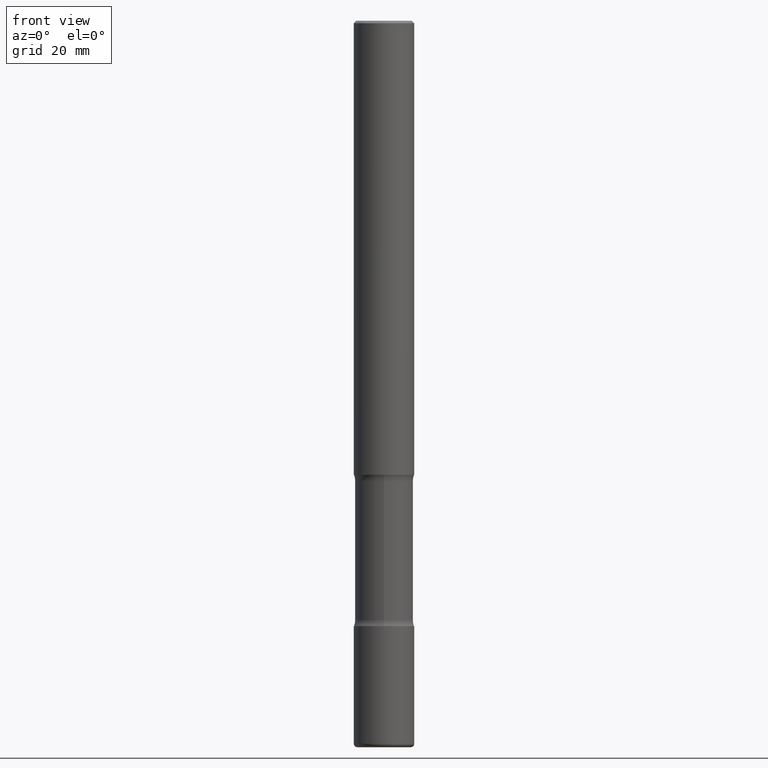
[diagram: clean part render]
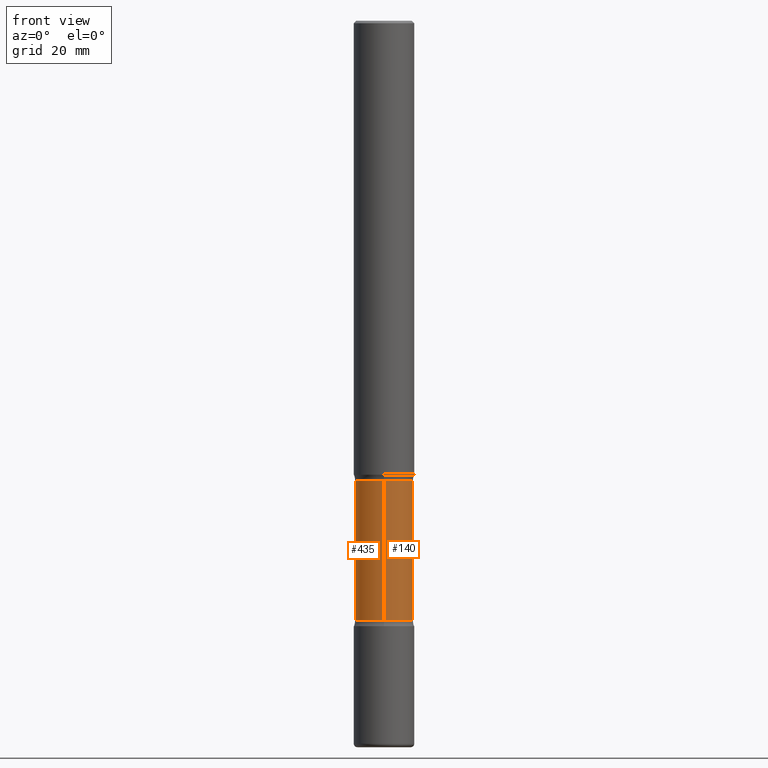
[diagram: same view with one multi-face feature highlighted, each face labeled with its STEP entity id]
A machine part, front view. The highlighted faces form ONE feature: a constant-radius fillet chain: 2 tangent blend faces with common blend radius 6.096 mm. The faces share edges in the B-rep.
Their STEP definitions:
[1] entity #140 (Cylinder):
#6 = VERTEX_POINT ( 'NONE', #201 ) ;
#8 = AXIS2_PLACEMENT_3D ( 'NONE', #170, #344, #518 ) ;
#9 = EDGE_LOOP ( 'NONE', ( #102, #279, #296, #72 ) ) ;
#14 = CYLINDRICAL_SURFACE ( 'NONE', #459, 0.2400000000000001021 ) ;
#16 = DIRECTION ( 'NONE',  ( 2.613521377680253946E-29, -3.250820491503775713E-15, -1.000000000000000000 ) ) ;
#18 = CARTESIAN_POINT ( 'NONE',  ( 1.484086540860593637E-28, -2.070822718571950481E-14, -6.000000000000000888 ) ) ;
#72 = ORIENTED_EDGE ( 'NONE', *, *, #329, .F. ) ;
#87 = CIRCLE ( 'NONE', #8, 0.2399999999999999634 ) ;
#102 = ORIENTED_EDGE ( 'NONE', *, *, #258, .T. ) ;
#118 = VECTOR ( 'NONE', #16, 39.37007874015748143 ) ;
#140 = ADVANCED_FACE ( 'NONE', ( #228 ), #14, .T. ) ;
#147 = VERTEX_POINT ( 'NONE', #397 ) ;
#150 = DIRECTION ( 'NONE',  ( 6.982962677686265922E-15, 1.000000000000000000, -4.553079989440436725E-15 ) ) ;
#170 = CARTESIAN_POINT ( 'NONE',  ( 1.209930815478223541E-28, -1.729814966522437149E-14, -4.951010205144336318 ) ) ;
#174 = CIRCLE ( 'NONE', #206, 0.2400000000000002409 ) ;
#201 = CARTESIAN_POINT ( 'NONE',  ( 1.675911042644796465E-15, 0.2399999999999866962, -3.798989794855664570 ) ) ;
#206 = AXIS2_PLACEMENT_3D ( 'NONE', #241, #293, #250 ) ;
#224 = VERTEX_POINT ( 'NONE', #402 ) ;
#228 = FACE_OUTER_BOUND ( 'NONE', #9, .T. ) ;
#241 = CARTESIAN_POINT ( 'NONE',  ( 9.088478184968812142E-29, -1.355313810882736568E-14, -3.798989794855663682 ) ) ;
#250 = DIRECTION ( 'NONE',  ( 6.982962677686265922E-15, 1.000000000000000000, -2.276539994720217179E-15 ) ) ;
#258 = EDGE_CURVE ( 'NONE', #6, #147, #174, .T. ) ;
#279 = ORIENTED_EDGE ( 'NONE', *, *, #532, .T. ) ;
#293 = DIRECTION ( 'NONE',  ( 2.613521377680253946E-29, -3.250820491503775319E-15, -1.000000000000000000 ) ) ;
#296 = ORIENTED_EDGE ( 'NONE', *, *, #415, .F. ) ;
#329 = EDGE_CURVE ( 'NONE', #6, #440, #383, .T. ) ;
#331 = CARTESIAN_POINT ( 'NONE',  ( -1.646519519465019451E-15, -0.2400000000000208078, -5.999999999999999112 ) ) ;
#344 = DIRECTION ( 'NONE',  ( 2.613521377680253946E-29, -3.250820491503775319E-15, -1.000000000000000000 ) ) ;
#347 = CARTESIAN_POINT ( 'NONE',  ( 1.675911042644853066E-15, 0.2399999999999793965, -6.000000000000001776 ) ) ;
#383 = LINE ( 'NONE', #347, #428 ) ;
#397 = CARTESIAN_POINT ( 'NONE',  ( -1.680822009453936675E-15, -0.2400000000000137856, -3.798989794855663238 ) ) ;
#402 = CARTESIAN_POINT ( 'NONE',  ( -1.680822009453903740E-15, -0.2400000000000172828, -4.951010205144335430 ) ) ;
#404 = DIRECTION ( 'NONE',  ( 2.613521377680253946E-29, -3.250820491503775319E-15, -1.000000000000000000 ) ) ;
#415 = EDGE_CURVE ( 'NONE', #440, #224, #87, .T. ) ;
#428 = VECTOR ( 'NONE', #507, 39.37007874015748143 ) ;
#434 = CARTESIAN_POINT ( 'NONE',  ( 1.675911042644824667E-15, 0.2399999999999826439, -4.951010205144337206 ) ) ;
#440 = VERTEX_POINT ( 'NONE', #434 ) ;
#459 = AXIS2_PLACEMENT_3D ( 'NONE', #18, #404, #150 ) ;
#464 = LINE ( 'NONE', #331, #118 ) ;
#507 = DIRECTION ( 'NONE',  ( 2.613521377680253946E-29, -3.250820491503775713E-15, -1.000000000000000000 ) ) ;
#518 = DIRECTION ( 'NONE',  ( 6.982962677686265922E-15, 1.000000000000000000, -4.553079989440439092E-15 ) ) ;
#532 = EDGE_CURVE ( 'NONE', #147, #224, #464, .T. ) ;
[2] entity #435 (Cylinder):
#6 = VERTEX_POINT ( 'NONE', #201 ) ;
#7 = AXIS2_PLACEMENT_3D ( 'NONE', #60, #192, #366 ) ;
#16 = DIRECTION ( 'NONE',  ( 2.613521377680253946E-29, -3.250820491503775713E-15, -1.000000000000000000 ) ) ;
#60 = CARTESIAN_POINT ( 'NONE',  ( 9.088478184968812142E-29, -1.355313810882736568E-14, -3.798989794855663682 ) ) ;
#65 = EDGE_CURVE ( 'NONE', #224, #440, #180, .T. ) ;
#80 = DIRECTION ( 'NONE',  ( 2.613521377680253946E-29, -3.250820491503775319E-15, -1.000000000000000000 ) ) ;
#92 = CYLINDRICAL_SURFACE ( 'NONE', #539, 0.2400000000000001021 ) ;
#118 = VECTOR ( 'NONE', #16, 39.37007874015748143 ) ;
#134 = FACE_OUTER_BOUND ( 'NONE', #207, .T. ) ;
#142 = ORIENTED_EDGE ( 'NONE', *, *, #329, .T. ) ;
#145 = EDGE_CURVE ( 'NONE', #147, #6, #291, .T. ) ;
#147 = VERTEX_POINT ( 'NONE', #397 ) ;
#180 = CIRCLE ( 'NONE', #427, 0.2399999999999999634 ) ;
#192 = DIRECTION ( 'NONE',  ( 2.613521377680253946E-29, -3.250820491503775319E-15, -1.000000000000000000 ) ) ;
#201 = CARTESIAN_POINT ( 'NONE',  ( 1.675911042644796465E-15, 0.2399999999999866962, -3.798989794855664570 ) ) ;
#207 = EDGE_LOOP ( 'NONE', ( #540, #229, #142, #350 ) ) ;
#224 = VERTEX_POINT ( 'NONE', #402 ) ;
#229 = ORIENTED_EDGE ( 'NONE', *, *, #145, .T. ) ;
#237 = DIRECTION ( 'NONE',  ( 2.613521377680253946E-29, -3.250820491503775319E-15, -1.000000000000000000 ) ) ;
#248 = DIRECTION ( 'NONE',  ( 6.982962677686265922E-15, 1.000000000000000000, -4.553079989440436725E-15 ) ) ;
#291 = CIRCLE ( 'NONE', #7, 0.2400000000000002409 ) ;
#329 = EDGE_CURVE ( 'NONE', #6, #440, #383, .T. ) ;
#331 = CARTESIAN_POINT ( 'NONE',  ( -1.646519519465019451E-15, -0.2400000000000208078, -5.999999999999999112 ) ) ;
#347 = CARTESIAN_POINT ( 'NONE',  ( 1.675911042644853066E-15, 0.2399999999999793965, -6.000000000000001776 ) ) ;
#350 = ORIENTED_EDGE ( 'NONE', *, *, #65, .F. ) ;
#366 = DIRECTION ( 'NONE',  ( 6.982962677686265922E-15, 1.000000000000000000, -2.276539994720217179E-15 ) ) ;
#383 = LINE ( 'NONE', #347, #428 ) ;
#397 = CARTESIAN_POINT ( 'NONE',  ( -1.680822009453936675E-15, -0.2400000000000137856, -3.798989794855663238 ) ) ;
#402 = CARTESIAN_POINT ( 'NONE',  ( -1.680822009453903740E-15, -0.2400000000000172828, -4.951010205144335430 ) ) ;
#427 = AXIS2_PLACEMENT_3D ( 'NONE', #466, #237, #546 ) ;
#428 = VECTOR ( 'NONE', #507, 39.37007874015748143 ) ;
#434 = CARTESIAN_POINT ( 'NONE',  ( 1.675911042644824667E-15, 0.2399999999999826439, -4.951010205144337206 ) ) ;
#435 = ADVANCED_FACE ( 'NONE', ( #134 ), #92, .T. ) ;
#440 = VERTEX_POINT ( 'NONE', #434 ) ;
#464 = LINE ( 'NONE', #331, #118 ) ;
#466 = CARTESIAN_POINT ( 'NONE',  ( 1.209930815478223541E-28, -1.729814966522437149E-14, -4.951010205144336318 ) ) ;
#468 = CARTESIAN_POINT ( 'NONE',  ( 1.484086540860593637E-28, -2.070822718571950481E-14, -6.000000000000000888 ) ) ;
#507 = DIRECTION ( 'NONE',  ( 2.613521377680253946E-29, -3.250820491503775713E-15, -1.000000000000000000 ) ) ;
#532 = EDGE_CURVE ( 'NONE', #147, #224, #464, .T. ) ;
#539 = AXIS2_PLACEMENT_3D ( 'NONE', #468, #80, #248 ) ;
#540 = ORIENTED_EDGE ( 'NONE', *, *, #532, .F. ) ;
#546 = DIRECTION ( 'NONE',  ( 6.982962677686265922E-15, 1.000000000000000000, -4.553079989440439092E-15 ) ) ;